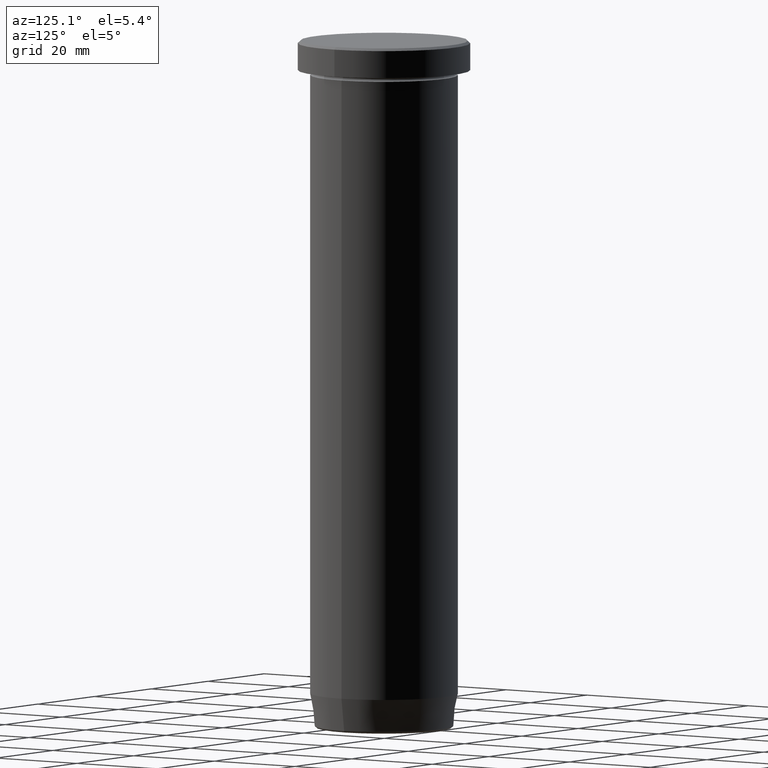
[diagram: clean part render]
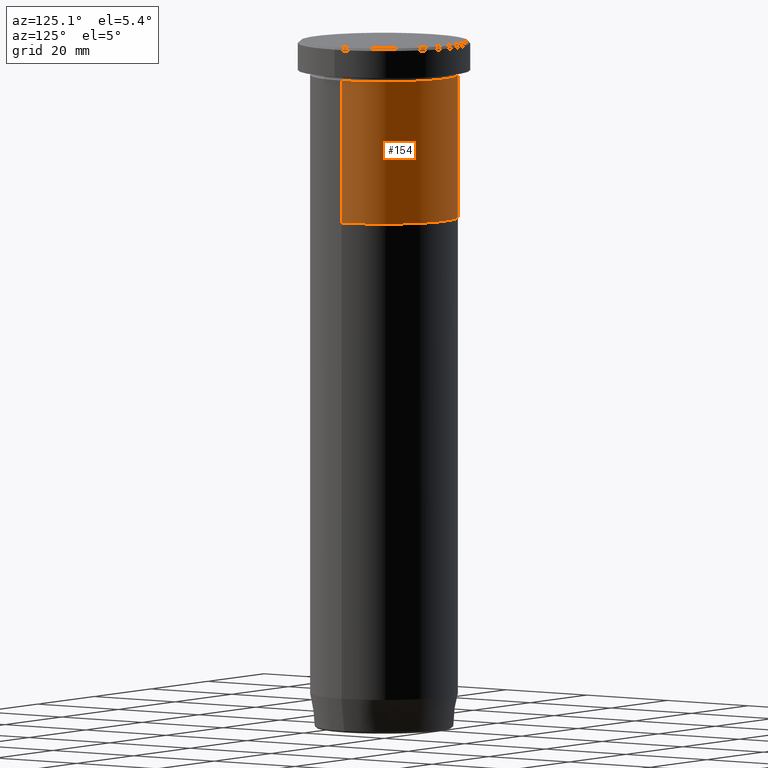
[diagram: same view with one face highlighted and labeled with its STEP entity id]
A machine part, auxiliary view. The second image highlights one B-rep face of the part: STEP entity #154.
In plain terms, the highlighted cylindrical surface (partial cylindrical patch) has radius 15 mm, axis along (-0, -0, 1).
Its self-contained STEP definition (entity closure, byte-faithful):
#49 = CYLINDRICAL_SURFACE ( 'NONE', #127, 15.00000000000000000 ) ;
#92 = CARTESIAN_POINT ( 'NONE',  ( 0.000000000000000000, 0.000000000000000000, 0.000000000000000000 ) ) ;
#123 = DIRECTION ( 'NONE',  ( -0.000000000000000000, -0.000000000000000000, 1.000000000000000000 ) ) ;
#127 = AXIS2_PLACEMENT_3D ( 'NONE', #92, #467, #235 ) ;
#147 = AXIS2_PLACEMENT_3D ( 'NONE', #488, #217, #404 ) ;
#154 = ADVANCED_FACE ( 'NONE', ( #499 ), #49, .T. ) ;
#158 = CARTESIAN_POINT ( 'NONE',  ( 15.00000000000000000, 0.000000000000000000, -6.999999999999999112 ) ) ;
#166 = ORIENTED_EDGE ( 'NONE', *, *, #570, .T. ) ;
#184 = CARTESIAN_POINT ( 'NONE',  ( -15.00000000000000000, 1.836970198721029589E-15, -36.00000000000000000 ) ) ;
#188 = CARTESIAN_POINT ( 'NONE',  ( -15.00000000000000000, 1.836970198721029589E-15, -6.999999999999999112 ) ) ;
#217 = DIRECTION ( 'NONE',  ( -0.000000000000000000, -0.000000000000000000, 1.000000000000000000 ) ) ;
#218 = VERTEX_POINT ( 'NONE', #184 ) ;
#235 = DIRECTION ( 'NONE',  ( 1.000000000000000000, 0.000000000000000000, 0.000000000000000000 ) ) ;
#251 = VERTEX_POINT ( 'NONE', #188 ) ;
#264 = CARTESIAN_POINT ( 'NONE',  ( 0.000000000000000000, 0.000000000000000000, -36.00000000000000000 ) ) ;
#270 = VERTEX_POINT ( 'NONE', #158 ) ;
#293 = AXIS2_PLACEMENT_3D ( 'NONE', #264, #458, #348 ) ;
#304 = LINE ( 'NONE', #577, #536 ) ;
#324 = ORIENTED_EDGE ( 'NONE', *, *, #487, .F. ) ;
#340 = CIRCLE ( 'NONE', #147, 15.00000000000000000 ) ;
#345 = LINE ( 'NONE', #490, #564 ) ;
#348 = DIRECTION ( 'NONE',  ( 1.000000000000000000, 0.000000000000000000, 0.000000000000000000 ) ) ;
#389 = EDGE_LOOP ( 'NONE', ( #166, #426, #531, #324 ) ) ;
#404 = DIRECTION ( 'NONE',  ( 1.000000000000000000, 0.000000000000000000, 0.000000000000000000 ) ) ;
#426 = ORIENTED_EDGE ( 'NONE', *, *, #530, .T. ) ;
#458 = DIRECTION ( 'NONE',  ( -0.000000000000000000, -0.000000000000000000, 1.000000000000000000 ) ) ;
#463 = CIRCLE ( 'NONE', #293, 15.00000000000000000 ) ;
#467 = DIRECTION ( 'NONE',  ( -0.000000000000000000, -0.000000000000000000, 1.000000000000000000 ) ) ;
#487 = EDGE_CURVE ( 'NONE', #539, #270, #304, .T. ) ;
#488 = CARTESIAN_POINT ( 'NONE',  ( 0.000000000000000000, 0.000000000000000000, -6.999999999999999112 ) ) ;
#490 = CARTESIAN_POINT ( 'NONE',  ( -15.00000000000000000, 1.836970198721029589E-15, 0.000000000000000000 ) ) ;
#492 = DIRECTION ( 'NONE',  ( -0.000000000000000000, -0.000000000000000000, 1.000000000000000000 ) ) ;
#499 = FACE_OUTER_BOUND ( 'NONE', #389, .T. ) ;
#507 = EDGE_CURVE ( 'NONE', #270, #251, #340, .T. ) ;
#530 = EDGE_CURVE ( 'NONE', #218, #251, #345, .T. ) ;
#531 = ORIENTED_EDGE ( 'NONE', *, *, #507, .F. ) ;
#536 = VECTOR ( 'NONE', #492, 1000.000000000000000 ) ;
#539 = VERTEX_POINT ( 'NONE', #540 ) ;
#540 = CARTESIAN_POINT ( 'NONE',  ( 15.00000000000000000, 0.000000000000000000, -36.00000000000000000 ) ) ;
#564 = VECTOR ( 'NONE', #123, 1000.000000000000000 ) ;
#570 = EDGE_CURVE ( 'NONE', #539, #218, #463, .T. ) ;
#577 = CARTESIAN_POINT ( 'NONE',  ( 15.00000000000000000, 0.000000000000000000, 0.000000000000000000 ) ) ;